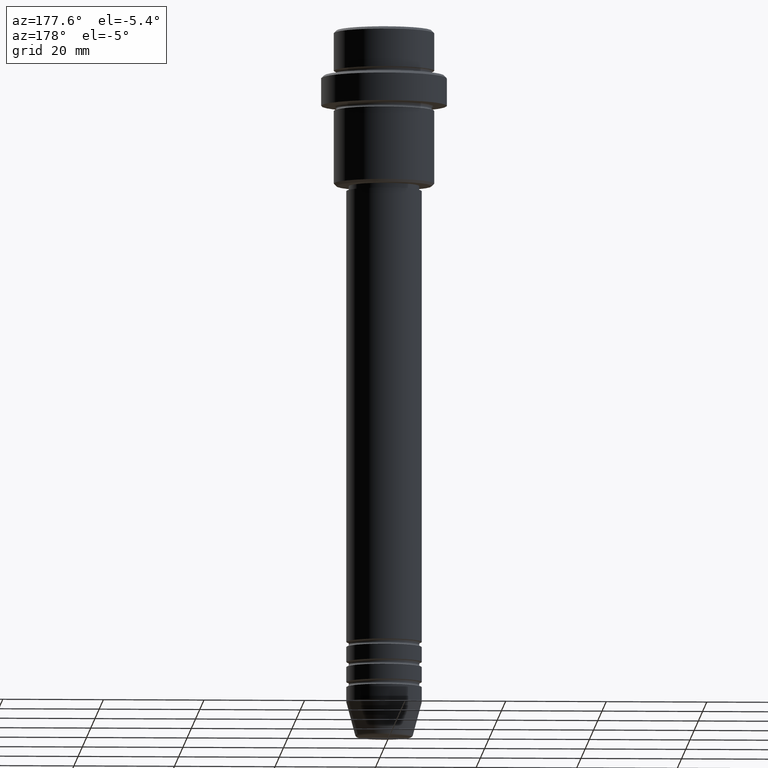
[diagram: clean part render]
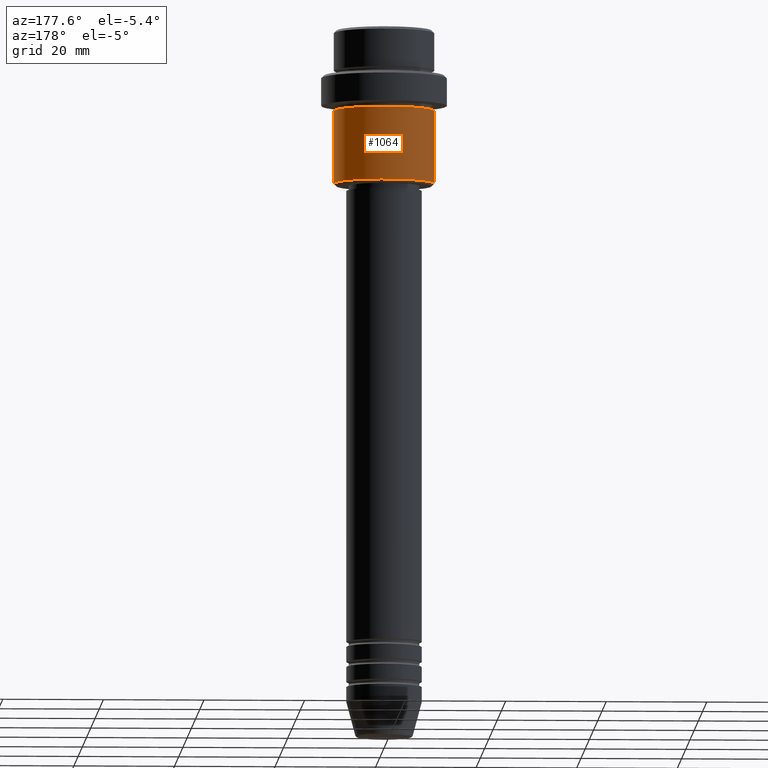
[diagram: same view with one face highlighted and labeled with its STEP entity id]
A machine part, auxiliary view. The second image highlights one B-rep face of the part: STEP entity #1064.
In plain terms, the highlighted cylindrical surface (partial cylindrical patch) has radius 10 mm, axis along (-0, -0, 1).
Its self-contained STEP definition (entity closure, byte-faithful):
#17 = CYLINDRICAL_SURFACE ( 'NONE', #271, 9.999999999999998224 ) ;
#32 = VECTOR ( 'NONE', #301, 1000.000000000000000 ) ;
#131 = CARTESIAN_POINT ( 'NONE',  ( 9.999999999999998224, 0.000000000000000000, -16.00000000000000000 ) ) ;
#153 = VERTEX_POINT ( 'NONE', #1216 ) ;
#155 = LINE ( 'NONE', #589, #250 ) ;
#162 = AXIS2_PLACEMENT_3D ( 'NONE', #694, #1137, #787 ) ;
#250 = VECTOR ( 'NONE', #1360, 1000.000000000000000 ) ;
#271 = AXIS2_PLACEMENT_3D ( 'NONE', #1295, #874, #447 ) ;
#301 = DIRECTION ( 'NONE',  ( -0.000000000000000000, -0.000000000000000000, 1.000000000000000000 ) ) ;
#383 = CARTESIAN_POINT ( 'NONE',  ( 9.999999999999998224, 0.000000000000000000, 0.000000000000000000 ) ) ;
#398 = FACE_OUTER_BOUND ( 'NONE', #1193, .T. ) ;
#408 = CIRCLE ( 'NONE', #573, 9.999999999999998224 ) ;
#447 = DIRECTION ( 'NONE',  ( 1.000000000000000000, 0.000000000000000000, 0.000000000000000000 ) ) ;
#531 = VERTEX_POINT ( 'NONE', #1077 ) ;
#573 = AXIS2_PLACEMENT_3D ( 'NONE', #900, #1336, #795 ) ;
#589 = CARTESIAN_POINT ( 'NONE',  ( -9.999999999999998224, 1.224646799147353059E-15, 0.000000000000000000 ) ) ;
#595 = CARTESIAN_POINT ( 'NONE',  ( 9.999999999999998224, 0.000000000000000000, -30.50000000000001776 ) ) ;
#618 = VERTEX_POINT ( 'NONE', #131 ) ;
#694 = CARTESIAN_POINT ( 'NONE',  ( 0.000000000000000000, 0.000000000000000000, -16.00000000000000000 ) ) ;
#764 = EDGE_CURVE ( 'NONE', #1275, #153, #408, .T. ) ;
#776 = CIRCLE ( 'NONE', #162, 9.999999999999998224 ) ;
#786 = ORIENTED_EDGE ( 'NONE', *, *, #916, .F. ) ;
#787 = DIRECTION ( 'NONE',  ( 1.000000000000000000, 0.000000000000000000, 0.000000000000000000 ) ) ;
#795 = DIRECTION ( 'NONE',  ( -1.000000000000000000, 0.000000000000000000, 0.000000000000000000 ) ) ;
#821 = EDGE_CURVE ( 'NONE', #153, #531, #155, .T. ) ;
#874 = DIRECTION ( 'NONE',  ( -0.000000000000000000, -0.000000000000000000, 1.000000000000000000 ) ) ;
#900 = CARTESIAN_POINT ( 'NONE',  ( 0.000000000000000000, 0.000000000000000000, -30.50000000000001776 ) ) ;
#916 = EDGE_CURVE ( 'NONE', #1275, #618, #1374, .T. ) ;
#994 = ORIENTED_EDGE ( 'NONE', *, *, #764, .T. ) ;
#1064 = ADVANCED_FACE ( 'NONE', ( #398 ), #17, .T. ) ;
#1077 = CARTESIAN_POINT ( 'NONE',  ( -9.999999999999998224, 1.224646799147353059E-15, -16.00000000000000000 ) ) ;
#1137 = DIRECTION ( 'NONE',  ( -0.000000000000000000, -0.000000000000000000, 1.000000000000000000 ) ) ;
#1193 = EDGE_LOOP ( 'NONE', ( #994, #1412, #1224, #786 ) ) ;
#1216 = CARTESIAN_POINT ( 'NONE',  ( -9.999999999999998224, 1.224646799147353059E-15, -30.50000000000001776 ) ) ;
#1224 = ORIENTED_EDGE ( 'NONE', *, *, #1248, .F. ) ;
#1248 = EDGE_CURVE ( 'NONE', #618, #531, #776, .T. ) ;
#1275 = VERTEX_POINT ( 'NONE', #595 ) ;
#1295 = CARTESIAN_POINT ( 'NONE',  ( 0.000000000000000000, 0.000000000000000000, 0.000000000000000000 ) ) ;
#1336 = DIRECTION ( 'NONE',  ( -0.000000000000000000, -0.000000000000000000, 1.000000000000000000 ) ) ;
#1360 = DIRECTION ( 'NONE',  ( -0.000000000000000000, -0.000000000000000000, 1.000000000000000000 ) ) ;
#1374 = LINE ( 'NONE', #383, #32 ) ;
#1412 = ORIENTED_EDGE ( 'NONE', *, *, #821, .T. ) ;